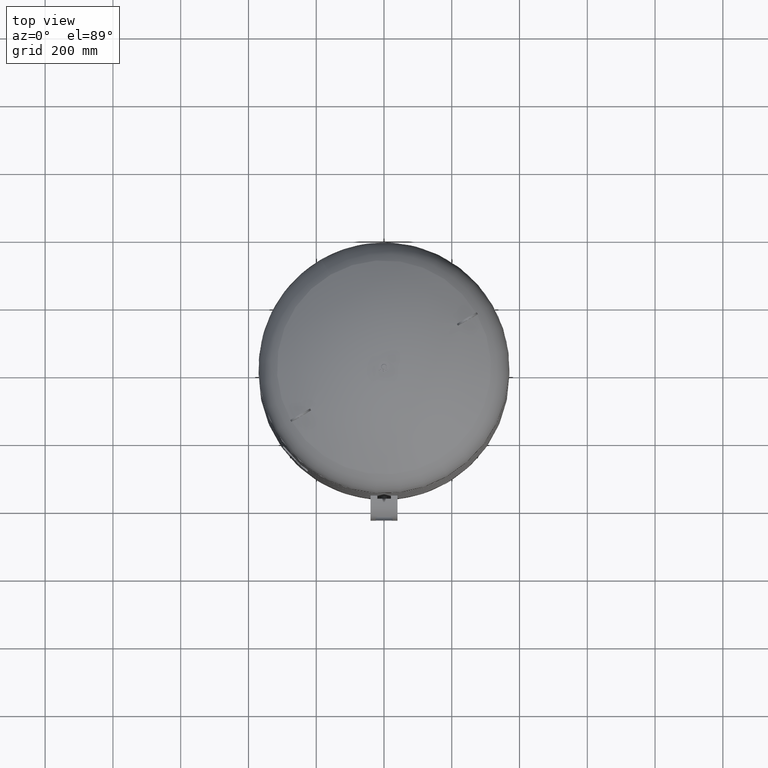
[diagram: clean part render]
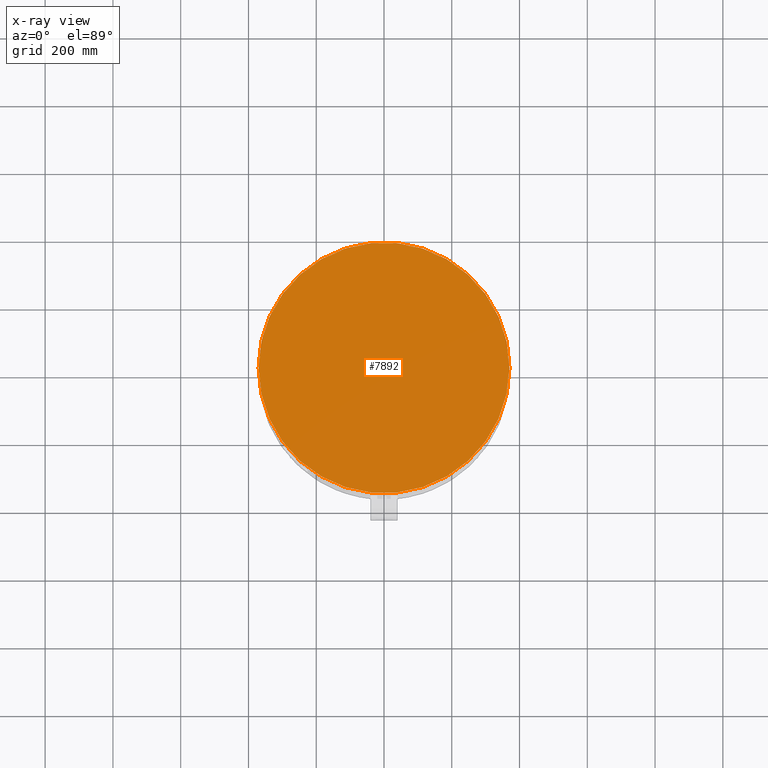
[diagram: x-ray — body ghosted, one internal face saturated and labeled with its STEP entity id]
A machine part, top view, then the same camera in x-ray: the body is ghosted and one INTERNAL B-rep face — a face not visible from any outside direction — is saturated and labeled: STEP entity #7892.
In plain terms, the highlighted planar face has unit normal (0, 0, 1).
Its self-contained STEP definition (entity closure, byte-faithful):
#7552=CARTESIAN_POINT('',(370.0,0.0,1641.0));
#7553=VERTEX_POINT('',#7552);
#7562=CARTESIAN_POINT('',(-369.999999999999890,-4.531044E-014,1641.0));
#7563=VERTEX_POINT('',#7562);
#7564=CARTESIAN_POINT('',(1.668796E-014,0.0,1641.0));
#7565=DIRECTION('',(0.0,0.0,1.0));
#7566=DIRECTION('',(1.0,0.0,0.0));
#7567=AXIS2_PLACEMENT_3D('',#7564,#7565,#7566);
#7568=CIRCLE('',#7567,370.0);
#7569=EDGE_CURVE('',#7563,#7553,#7568,.T.);
#7873=CARTESIAN_POINT('',(1.668796E-014,0.0,1641.0));
#7874=DIRECTION('',(0.0,0.0,1.0));
#7875=DIRECTION('',(1.0,0.0,0.0));
#7876=AXIS2_PLACEMENT_3D('',#7873,#7874,#7875);
#7877=CIRCLE('',#7876,370.0);
#7878=EDGE_CURVE('',#7553,#7563,#7877,.T.);
#7883=CARTESIAN_POINT('',(185.0,0.0,1641.0));
#7884=DIRECTION('',(0.0,0.0,1.0));
#7885=DIRECTION('',(1.0,0.0,0.0));
#7886=AXIS2_PLACEMENT_3D('',#7883,#7884,#7885);
#7887=PLANE('',#7886);
#7888=ORIENTED_EDGE('',*,*,#7878,.T.);
#7889=ORIENTED_EDGE('',*,*,#7569,.T.);
#7890=EDGE_LOOP('',(#7888,#7889));
#7891=FACE_OUTER_BOUND('',#7890,.T.);
#7892=ADVANCED_FACE('',(#7891),#7887,.T.);